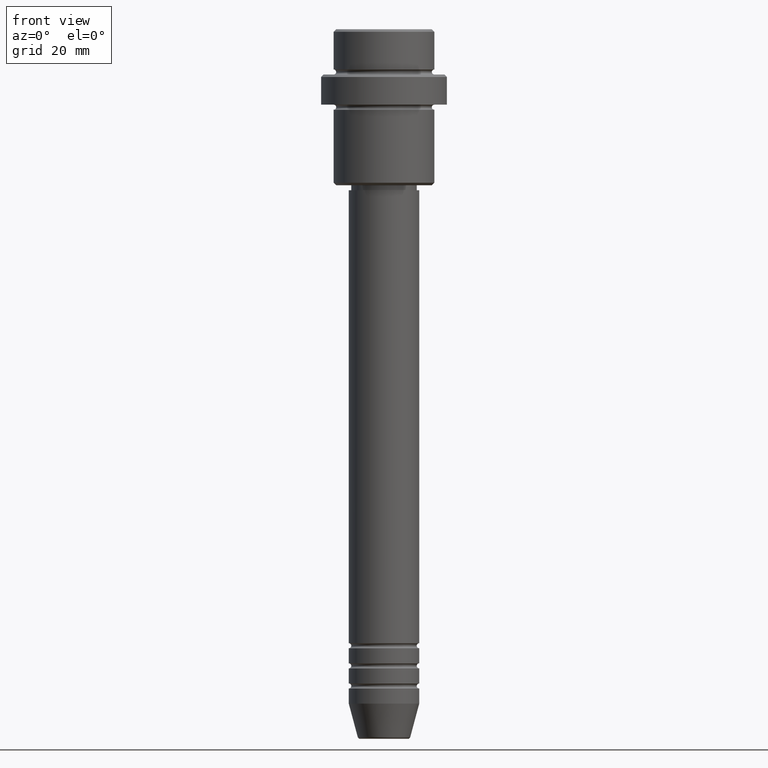
[diagram: clean part render]
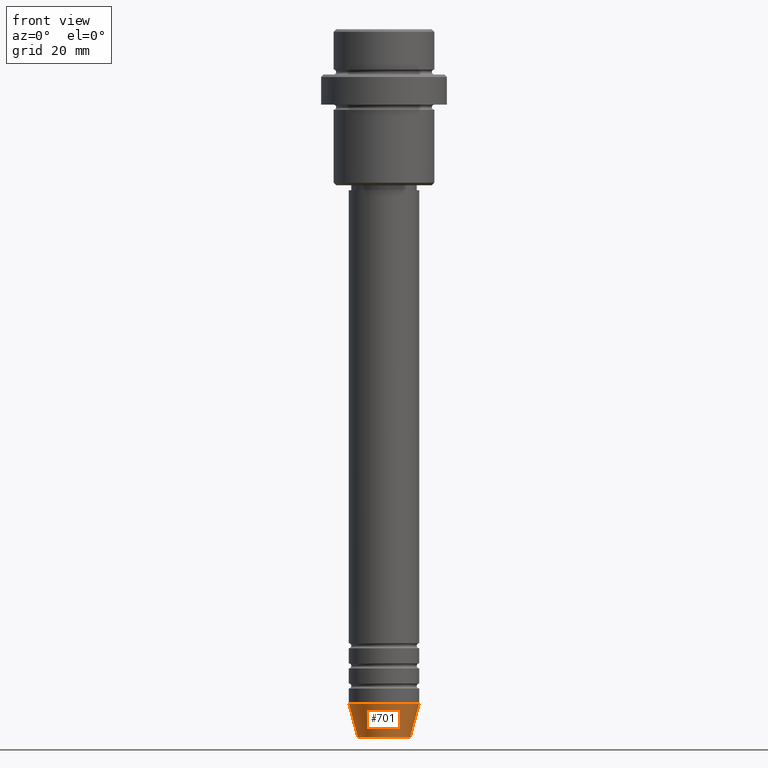
[diagram: same view with one face highlighted and labeled with its STEP entity id]
A machine part, front view. The second image highlights one B-rep face of the part: STEP entity #701.
In plain terms, the highlighted conical surface has half-angle 15 deg.
Its self-contained STEP definition (entity closure, byte-faithful):
#4 = AXIS2_PLACEMENT_3D ( 'NONE', #237, #559, #989 ) ;
#40 = DIRECTION ( 'NONE',  ( 1.000000000000000000, 0.000000000000000000, 0.000000000000000000 ) ) ;
#99 = CARTESIAN_POINT ( 'NONE',  ( -5.223655072137191269, 7.484830028987061160E-16, -140.6294095225512706 ) ) ;
#126 = VERTEX_POINT ( 'NONE', #99 ) ;
#138 = CONICAL_SURFACE ( 'NONE', #4, 7.000000000000000000, 0.2617993877991501295 ) ;
#186 = CARTESIAN_POINT ( 'NONE',  ( 0.000000000000000000, 0.000000000000000000, -134.0000000000000000 ) ) ;
#237 = CARTESIAN_POINT ( 'NONE',  ( 0.000000000000000000, 0.000000000000000000, -134.0000000000000000 ) ) ;
#274 = ORIENTED_EDGE ( 'NONE', *, *, #1062, .T. ) ;
#284 = LINE ( 'NONE', #717, #680 ) ;
#287 = CARTESIAN_POINT ( 'NONE',  ( -7.000000000000000000, 8.572527594031473190E-16, -134.0000000000000000 ) ) ;
#290 = VERTEX_POINT ( 'NONE', #774 ) ;
#348 = DIRECTION ( 'NONE',  ( -0.2588190451025214056, 3.169619151431772953E-17, 0.9659258262890680902 ) ) ;
#514 = EDGE_CURVE ( 'NONE', #126, #1239, #1089, .T. ) ;
#528 = CARTESIAN_POINT ( 'NONE',  ( -7.000000000000000000, 8.572527594031473190E-16, -134.0000000000000000 ) ) ;
#544 = VECTOR ( 'NONE', #348, 1000.000000000000000 ) ;
#559 = DIRECTION ( 'NONE',  ( -0.000000000000000000, -0.000000000000000000, 1.000000000000000000 ) ) ;
#587 = CARTESIAN_POINT ( 'NONE',  ( 0.000000000000000000, 0.000000000000000000, -140.6294095225512706 ) ) ;
#596 = ORIENTED_EDGE ( 'NONE', *, *, #726, .T. ) ;
#611 = DIRECTION ( 'NONE',  ( 0.2588190451025214056, 0.000000000000000000, 0.9659258262890680902 ) ) ;
#680 = VECTOR ( 'NONE', #611, 1000.000000000000000 ) ;
#691 = DIRECTION ( 'NONE',  ( -0.000000000000000000, -0.000000000000000000, 1.000000000000000000 ) ) ;
#701 = ADVANCED_FACE ( 'NONE', ( #912 ), #138, .T. ) ;
#717 = CARTESIAN_POINT ( 'NONE',  ( 7.000000000000000000, 0.000000000000000000, -134.0000000000000000 ) ) ;
#726 = EDGE_CURVE ( 'NONE', #773, #290, #284, .T. ) ;
#764 = ORIENTED_EDGE ( 'NONE', *, *, #514, .F. ) ;
#771 = EDGE_CURVE ( 'NONE', #1239, #290, #1020, .T. ) ;
#773 = VERTEX_POINT ( 'NONE', #936 ) ;
#774 = CARTESIAN_POINT ( 'NONE',  ( 7.000000000000000000, 0.000000000000000000, -134.0000000000000000 ) ) ;
#912 = FACE_OUTER_BOUND ( 'NONE', #1347, .T. ) ;
#936 = CARTESIAN_POINT ( 'NONE',  ( 5.223655072137191269, 0.000000000000000000, -140.6294095225512706 ) ) ;
#989 = DIRECTION ( 'NONE',  ( 1.000000000000000000, 0.000000000000000000, 0.000000000000000000 ) ) ;
#1020 = CIRCLE ( 'NONE', #1312, 7.000000000000000000 ) ;
#1062 = EDGE_CURVE ( 'NONE', #126, #773, #1315, .T. ) ;
#1089 = LINE ( 'NONE', #528, #544 ) ;
#1239 = VERTEX_POINT ( 'NONE', #287 ) ;
#1258 = DIRECTION ( 'NONE',  ( -0.000000000000000000, -0.000000000000000000, 1.000000000000000000 ) ) ;
#1312 = AXIS2_PLACEMENT_3D ( 'NONE', #186, #1258, #1373 ) ;
#1315 = CIRCLE ( 'NONE', #1333, 5.223655072137191269 ) ;
#1333 = AXIS2_PLACEMENT_3D ( 'NONE', #587, #691, #40 ) ;
#1344 = ORIENTED_EDGE ( 'NONE', *, *, #771, .F. ) ;
#1347 = EDGE_LOOP ( 'NONE', ( #764, #274, #596, #1344 ) ) ;
#1373 = DIRECTION ( 'NONE',  ( 1.000000000000000000, 0.000000000000000000, 0.000000000000000000 ) ) ;